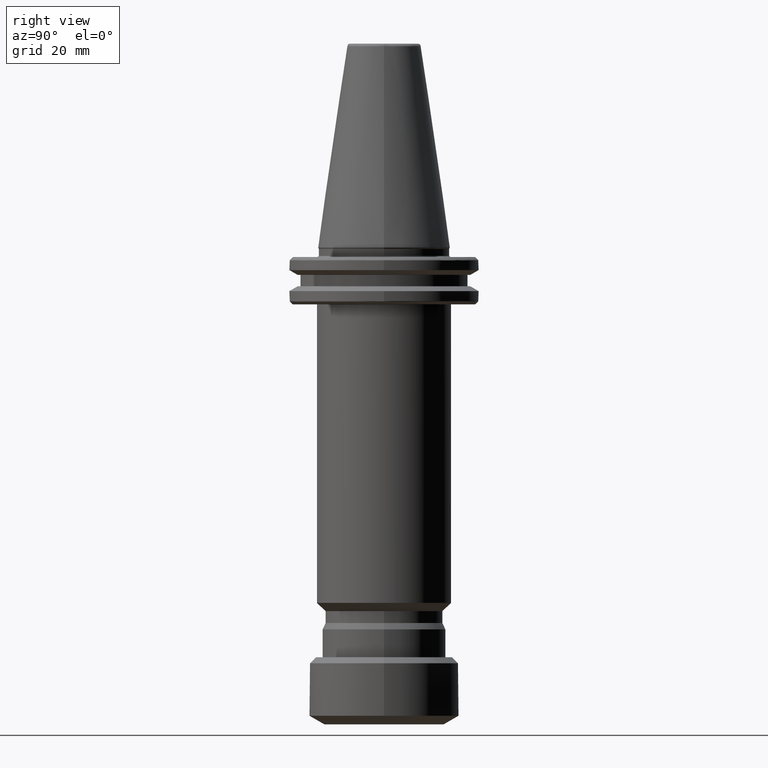
[diagram: clean part render]
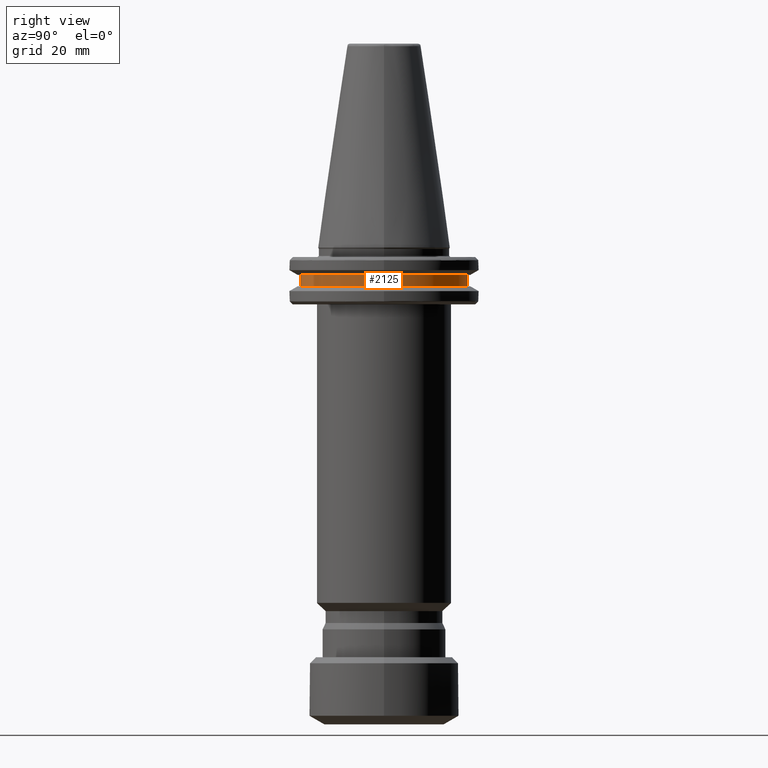
[diagram: same view with one face highlighted and labeled with its STEP entity id]
A machine part, right view. The second image highlights one B-rep face of the part: STEP entity #2125.
In plain terms, the highlighted cylindrical surface (partial cylindrical patch) has radius 28 mm, axis along (0, -0, 1).
Its self-contained STEP definition (entity closure, byte-faithful):
#34 = VERTEX_POINT ( 'NONE', #1103 ) ;
#140 = LINE ( 'NONE', #1075, #2139 ) ;
#299 = CIRCLE ( 'NONE', #2680, 28.00000000000000000 ) ;
#367 = FACE_OUTER_BOUND ( 'NONE', #839, .T. ) ;
#396 = ORIENTED_EDGE ( 'NONE', *, *, #1916, .T. ) ;
#546 = DIRECTION ( 'NONE',  ( 0.0000000000000000000, -1.000000000000000000, -6.195440985631454100E-017 ) ) ;
#549 = VERTEX_POINT ( 'NONE', #2736 ) ;
#745 = DIRECTION ( 'NONE',  ( 0.0000000000000000000, -3.097720492815727700E-017, 1.000000000000000000 ) ) ;
#755 = CARTESIAN_POINT ( 'NONE',  ( 0.0000000000000000000, -7.947095841366504100E-032, -13.00000000000000200 ) ) ;
#763 = DIRECTION ( 'NONE',  ( 0.0000000000000000000, -3.097720492815727700E-017, 1.000000000000000000 ) ) ;
#806 = DIRECTION ( 'NONE',  ( -0.0000000000000000000, 3.097720492815727700E-017, -1.000000000000000000 ) ) ;
#813 = CARTESIAN_POINT ( 'NONE',  ( 3.429011037612589300E-015, 28.00000000000000000, -13.00000000000000200 ) ) ;
#839 = EDGE_LOOP ( 'NONE', ( #2647, #396, #2140, #2025 ) ) ;
#1072 = CIRCLE ( 'NONE', #2164, 28.00000000000000000 ) ;
#1075 = CARTESIAN_POINT ( 'NONE',  ( 0.0000000000000000000, -28.00000000000000000, -13.00000000000000500 ) ) ;
#1103 = CARTESIAN_POINT ( 'NONE',  ( 3.429011037612589300E-015, 28.00000000000000000, -9.199999999999999300 ) ) ;
#1189 = EDGE_CURVE ( 'NONE', #549, #1192, #1072, .T. ) ;
#1192 = VERTEX_POINT ( 'NONE', #813 ) ;
#1669 = CYLINDRICAL_SURFACE ( 'NONE', #2170, 28.00000000000000000 ) ;
#1790 = DIRECTION ( 'NONE',  ( 0.0000000000000000000, -1.000000000000000000, -6.195440985631454100E-017 ) ) ;
#1916 = EDGE_CURVE ( 'NONE', #1192, #34, #2749, .T. ) ;
#2025 = ORIENTED_EDGE ( 'NONE', *, *, #2866, .F. ) ;
#2125 = ADVANCED_FACE ( 'NONE', ( #367 ), #1669, .T. ) ;
#2139 = VECTOR ( 'NONE', #2343, 1000.000000000000000 ) ;
#2140 = ORIENTED_EDGE ( 'NONE', *, *, #2199, .T. ) ;
#2164 = AXIS2_PLACEMENT_3D ( 'NONE', #755, #745, #546 ) ;
#2170 = AXIS2_PLACEMENT_3D ( 'NONE', #3324, #763, #1790 ) ;
#2199 = EDGE_CURVE ( 'NONE', #34, #3119, #299, .T. ) ;
#2343 = DIRECTION ( 'NONE',  ( 0.0000000000000000000, -3.097720492815727700E-017, 1.000000000000000000 ) ) ;
#2345 = CARTESIAN_POINT ( 'NONE',  ( 0.0000000000000000000, -1.177133787269977100E-016, -9.199999999999999300 ) ) ;
#2404 = CARTESIAN_POINT ( 'NONE',  ( 0.0000000000000000000, -28.00000000000000000, -9.200000000000001100 ) ) ;
#2601 = DIRECTION ( 'NONE',  ( 0.0000000000000000000, -1.000000000000000000, -6.195440985631454100E-017 ) ) ;
#2647 = ORIENTED_EDGE ( 'NONE', *, *, #1189, .T. ) ;
#2673 = VECTOR ( 'NONE', #2729, 1000.000000000000000 ) ;
#2680 = AXIS2_PLACEMENT_3D ( 'NONE', #2345, #806, #2601 ) ;
#2729 = DIRECTION ( 'NONE',  ( 0.0000000000000000000, -3.097720492815727700E-017, 1.000000000000000000 ) ) ;
#2736 = CARTESIAN_POINT ( 'NONE',  ( 0.0000000000000000000, -28.00000000000000000, -13.00000000000000400 ) ) ;
#2749 = LINE ( 'NONE', #2988, #2673 ) ;
#2866 = EDGE_CURVE ( 'NONE', #549, #3119, #140, .T. ) ;
#2988 = CARTESIAN_POINT ( 'NONE',  ( 3.429011037612589300E-015, 28.00000000000000000, -13.00000000000000200 ) ) ;
#3119 = VERTEX_POINT ( 'NONE', #2404 ) ;
#3324 = CARTESIAN_POINT ( 'NONE',  ( 0.0000000000000000000, 0.0000000000000000000, -13.00000000000000400 ) ) ;